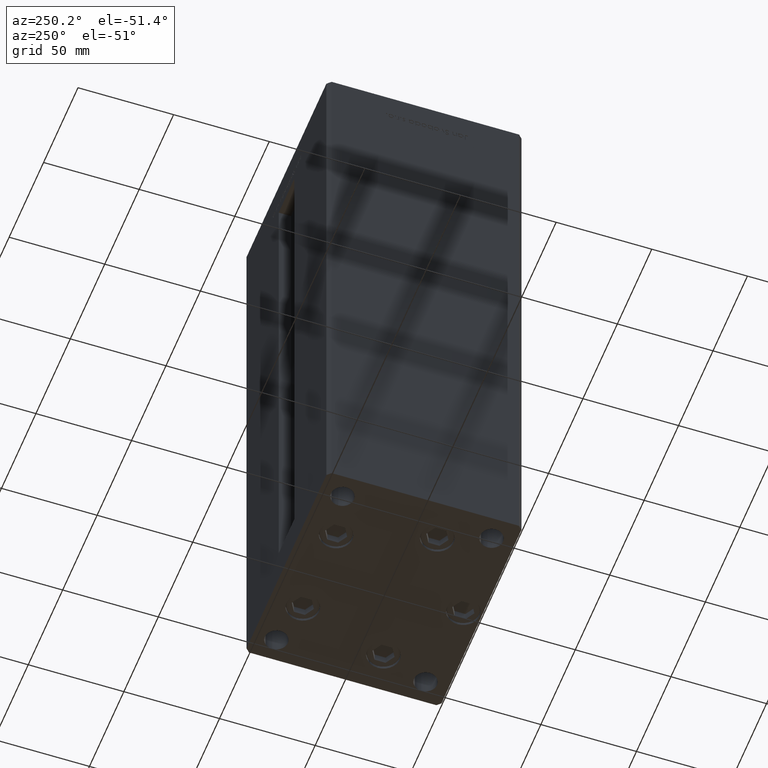
[diagram: clean part render]
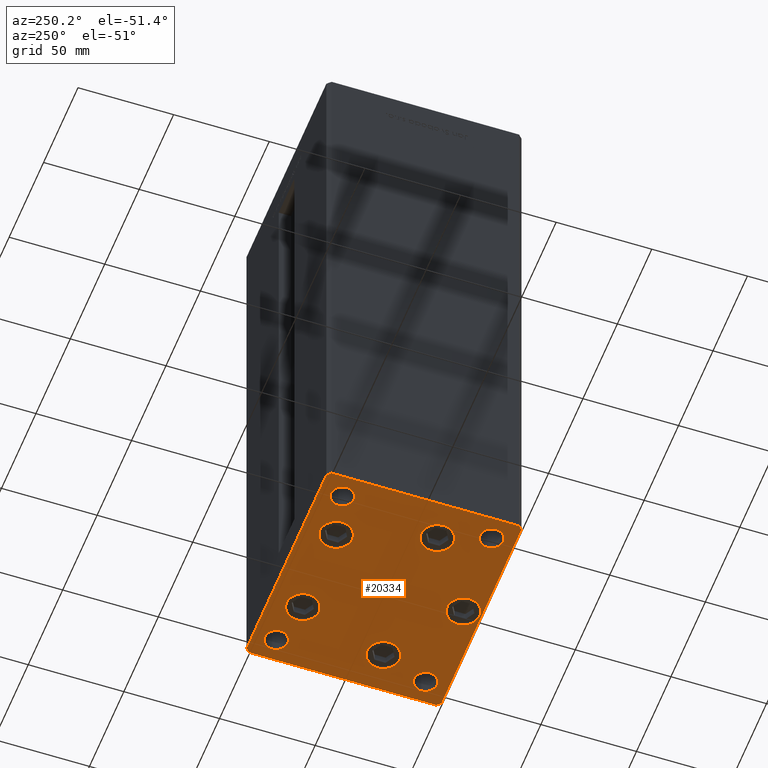
[diagram: same view with one face highlighted and labeled with its STEP entity id]
A machine part, auxiliary view. The second image highlights one B-rep face of the part: STEP entity #20334.
In plain terms, the highlighted planar face has unit normal (0, 0, -1).
Its self-contained STEP definition (entity closure, byte-faithful):
#53 = VERTEX_POINT ( 'NONE', #21001 ) ;
#323 = DIRECTION ( 'NONE',  ( 1.000000000000000000, 0.000000000000000000, 0.000000000000000000 ) ) ;
#451 = CARTESIAN_POINT ( 'NONE',  ( -57.99999999999999289, 50.99999999999997868, 0.000000000000000000 ) ) ;
#476 = EDGE_CURVE ( 'NONE', #53, #16681, #43424, .T. ) ;
#578 = DIRECTION ( 'NONE',  ( 0.000000000000000000, -0.000000000000000000, -1.000000000000000000 ) ) ;
#623 = AXIS2_PLACEMENT_3D ( 'NONE', #34717, #28033, #22859 ) ;
#815 = CARTESIAN_POINT ( 'NONE',  ( -57.99999999999999289, 50.99999999999997868, 0.000000000000000000 ) ) ;
#1194 = VERTEX_POINT ( 'NONE', #28170 ) ;
#1593 = DIRECTION ( 'NONE',  ( 1.000000000000000000, 0.000000000000000000, 0.000000000000000000 ) ) ;
#1868 = DIRECTION ( 'NONE',  ( 1.000000000000000000, 0.000000000000000000, 0.000000000000000000 ) ) ;
#1894 = EDGE_LOOP ( 'NONE', ( #44348, #49921 ) ) ;
#1948 = AXIS2_PLACEMENT_3D ( 'NONE', #48613, #25139, #40692 ) ;
#2445 = ORIENTED_EDGE ( 'NONE', *, *, #5685, .T. ) ;
#2518 = CARTESIAN_POINT ( 'NONE',  ( 39.12657522565562829, -13.83333333333332860, 0.000000000000000000 ) ) ;
#2549 = CIRCLE ( 'NONE', #42090, 8.500000000000000000 ) ;
#2672 = EDGE_LOOP ( 'NONE', ( #8018, #46537, #29343, #2445, #36001, #12735, #51839, #6820 ) ) ;
#2704 = CARTESIAN_POINT ( 'NONE',  ( -57.99999999999997868, -51.00000000000001421, 0.000000000000000000 ) ) ;
#2910 = FACE_OUTER_BOUND ( 'NONE', #2672, .T. ) ;
#3274 = ORIENTED_EDGE ( 'NONE', *, *, #49089, .T. ) ;
#3356 = EDGE_CURVE ( 'NONE', #34405, #30358, #30381, .T. ) ;
#3380 = LINE ( 'NONE', #47395, #25075 ) ;
#3492 = DIRECTION ( 'NONE',  ( -0.000000000000000000, 0.000000000000000000, 1.000000000000000000 ) ) ;
#3738 = CARTESIAN_POINT ( 'NONE',  ( 8.500000000000005329, -41.50000000000000000, 0.000000000000000000 ) ) ;
#4172 = VECTOR ( 'NONE', #17050, 1000.000000000000114 ) ;
#4177 = DIRECTION ( 'NONE',  ( 0.000000000000000000, -0.000000000000000000, -1.000000000000000000 ) ) ;
#4315 = CARTESIAN_POINT ( 'NONE',  ( 57.99999999999993605, 51.00000000000000711, 0.000000000000000000 ) ) ;
#5309 = CARTESIAN_POINT ( 'NONE',  ( 39.12657522565562829, -13.83333333333332860, 0.000000000000000000 ) ) ;
#5648 = CARTESIAN_POINT ( 'NONE',  ( -8.499999999999994671, -41.50000000000000000, 0.000000000000000000 ) ) ;
#5685 = EDGE_CURVE ( 'NONE', #42245, #8961, #3380, .T. ) ;
#5896 = DIRECTION ( 'NONE',  ( 1.000000000000000000, 0.000000000000000000, 0.000000000000000000 ) ) ;
#5946 = VERTEX_POINT ( 'NONE', #31936 ) ;
#5972 = DIRECTION ( 'NONE',  ( 0.000000000000000000, -0.000000000000000000, -1.000000000000000000 ) ) ;
#6126 = DIRECTION ( 'NONE',  ( -0.000000000000000000, 0.000000000000000000, 1.000000000000000000 ) ) ;
#6399 = CARTESIAN_POINT ( 'NONE',  ( -30.62657522565562829, -13.83333333333333748, 0.000000000000000000 ) ) ;
#6412 = VECTOR ( 'NONE', #40059, 1000.000000000000000 ) ;
#6518 = CARTESIAN_POINT ( 'NONE',  ( -54.00000000000000711, 39.00000000000000000, 0.000000000000000000 ) ) ;
#6598 = DIRECTION ( 'NONE',  ( 0.000000000000000000, -0.000000000000000000, -1.000000000000000000 ) ) ;
#6820 = ORIENTED_EDGE ( 'NONE', *, *, #32591, .T. ) ;
#7024 = CARTESIAN_POINT ( 'NONE',  ( -48.00000000000000000, -39.00000000000000000, 0.000000000000000000 ) ) ;
#7258 = LINE ( 'NONE', #20165, #12627 ) ;
#7380 = FACE_BOUND ( 'NONE', #14166, .T. ) ;
#7537 = CIRCLE ( 'NONE', #37014, 8.500000000000000000 ) ;
#7587 = EDGE_CURVE ( 'NONE', #39856, #51593, #26794, .T. ) ;
#7870 = VERTEX_POINT ( 'NONE', #5648 ) ;
#7914 = CARTESIAN_POINT ( 'NONE',  ( 59.99999999999994316, 49.00000000000000000, 0.000000000000000000 ) ) ;
#8018 = ORIENTED_EDGE ( 'NONE', *, *, #48244, .T. ) ;
#8036 = CARTESIAN_POINT ( 'NONE',  ( -54.00000000000000711, -39.00000000000000000, 0.000000000000000000 ) ) ;
#8256 = LINE ( 'NONE', #4315, #29442 ) ;
#8565 = CIRCLE ( 'NONE', #22901, 8.499999999999992895 ) ;
#8761 = ORIENTED_EDGE ( 'NONE', *, *, #21760, .T. ) ;
#8961 = VERTEX_POINT ( 'NONE', #22449 ) ;
#9733 = EDGE_CURVE ( 'NONE', #38596, #30944, #8256, .T. ) ;
#9859 = CIRCLE ( 'NONE', #623, 8.500000000000000000 ) ;
#9903 = AXIS2_PLACEMENT_3D ( 'NONE', #47506, #3492, #323 ) ;
#10036 = CARTESIAN_POINT ( 'NONE',  ( 24.19288941894911460, 33.71875000000000711, 0.000000000000000000 ) ) ;
#10208 = EDGE_CURVE ( 'NONE', #31415, #5946, #7537, .T. ) ;
#10329 = AXIS2_PLACEMENT_3D ( 'NONE', #2518, #38618, #46029 ) ;
#11328 = FACE_BOUND ( 'NONE', #36864, .T. ) ;
#11583 = FACE_BOUND ( 'NONE', #33686, .T. ) ;
#12136 = CARTESIAN_POINT ( 'NONE',  ( 32.69288941894911460, 33.71875000000000711, 0.000000000000000000 ) ) ;
#12162 = ORIENTED_EDGE ( 'NONE', *, *, #40714, .T. ) ;
#12387 = CIRCLE ( 'NONE', #51100, 6.000000000000005329 ) ;
#12554 = CIRCLE ( 'NONE', #24356, 8.500000000000000000 ) ;
#12627 = VECTOR ( 'NONE', #15690, 1000.000000000000114 ) ;
#12735 = ORIENTED_EDGE ( 'NONE', *, *, #9733, .T. ) ;
#13126 = CARTESIAN_POINT ( 'NONE',  ( -60.00000000000000000, 48.99999999999995737, 0.000000000000000000 ) ) ;
#13186 = CIRCLE ( 'NONE', #50246, 6.000000000000005329 ) ;
#13216 = ORIENTED_EDGE ( 'NONE', *, *, #10208, .T. ) ;
#13292 = CIRCLE ( 'NONE', #9903, 6.000000000000005329 ) ;
#13612 = CARTESIAN_POINT ( 'NONE',  ( -48.00000000000000000, -39.00000000000000000, 0.000000000000000000 ) ) ;
#13967 = AXIS2_PLACEMENT_3D ( 'NONE', #46218, #17752, #5896 ) ;
#13971 = AXIS2_PLACEMENT_3D ( 'NONE', #40529, #4177, #44484 ) ;
#14166 = EDGE_LOOP ( 'NONE', ( #17595, #21703 ) ) ;
#14186 = CARTESIAN_POINT ( 'NONE',  ( 54.00000000000000711, -38.99999999999999289, 0.000000000000000000 ) ) ;
#14573 = AXIS2_PLACEMENT_3D ( 'NONE', #22946, #35574, #51663 ) ;
#14968 = AXIS2_PLACEMENT_3D ( 'NONE', #13612, #5972, #26507 ) ;
#15094 = AXIS2_PLACEMENT_3D ( 'NONE', #49401, #40446, #16740 ) ;
#15119 = CARTESIAN_POINT ( 'NONE',  ( -24.19288941894912170, 33.71875000000000000, 0.000000000000000000 ) ) ;
#15646 = ORIENTED_EDGE ( 'NONE', *, *, #38280, .F. ) ;
#15690 = DIRECTION ( 'NONE',  ( 0.7071067811865474617, -0.7071067811865474617, 0.000000000000000000 ) ) ;
#16186 = CARTESIAN_POINT ( 'NONE',  ( 58.00000000000000000, -51.00000000000000711, 0.000000000000000000 ) ) ;
#16210 = LINE ( 'NONE', #24116, #20216 ) ;
#16327 = EDGE_CURVE ( 'NONE', #32653, #30490, #8565, .T. ) ;
#16681 = VERTEX_POINT ( 'NONE', #37173 ) ;
#16740 = DIRECTION ( 'NONE',  ( 1.000000000000000000, 0.000000000000000000, 0.000000000000000000 ) ) ;
#17050 = DIRECTION ( 'NONE',  ( -0.7071067811865451302, -0.7071067811865500152, 0.000000000000000000 ) ) ;
#17339 = ORIENTED_EDGE ( 'NONE', *, *, #36626, .F. ) ;
#17367 = CIRCLE ( 'NONE', #23261, 6.000000000000005329 ) ;
#17595 = ORIENTED_EDGE ( 'NONE', *, *, #19424, .T. ) ;
#17752 = DIRECTION ( 'NONE',  ( -0.000000000000000000, 0.000000000000000000, 1.000000000000000000 ) ) ;
#17923 = CARTESIAN_POINT ( 'NONE',  ( 48.00000000000000000, -38.99999999999999289, 0.000000000000000000 ) ) ;
#18491 = DIRECTION ( 'NONE',  ( 1.000000000000000000, 0.000000000000000000, 0.000000000000000000 ) ) ;
#18580 = VERTEX_POINT ( 'NONE', #6399 ) ;
#18653 = VERTEX_POINT ( 'NONE', #3738 ) ;
#18982 = FACE_BOUND ( 'NONE', #47701, .T. ) ;
#19401 = ORIENTED_EDGE ( 'NONE', *, *, #33441, .T. ) ;
#19424 = EDGE_CURVE ( 'NONE', #7870, #18653, #22158, .T. ) ;
#19523 = CARTESIAN_POINT ( 'NONE',  ( 30.62657522565563184, -13.83333333333332860, 0.000000000000000000 ) ) ;
#19561 = EDGE_CURVE ( 'NONE', #30490, #32653, #28005, .T. ) ;
#19620 = VERTEX_POINT ( 'NONE', #27278 ) ;
#20020 = CIRCLE ( 'NONE', #36892, 8.500000000000000000 ) ;
#20072 = DIRECTION ( 'NONE',  ( 1.000000000000000000, 0.000000000000000000, 0.000000000000000000 ) ) ;
#20165 = CARTESIAN_POINT ( 'NONE',  ( -60.00000000000000000, -49.00000000000000000, 0.000000000000000000 ) ) ;
#20216 = VECTOR ( 'NONE', #43888, 1000.000000000000114 ) ;
#20231 = CARTESIAN_POINT ( 'NONE',  ( -41.99999999999999289, -39.00000000000000000, 0.000000000000000000 ) ) ;
#20334 = ADVANCED_FACE ( 'NONE', ( #26896, #51401, #11328, #7380, #27411, #27670, #11583, #23463, #2910, #18982 ), #31107, .T. ) ;
#21001 = CARTESIAN_POINT ( 'NONE',  ( 54.00000000000000711, 38.99999999999999289, 0.000000000000000000 ) ) ;
#21703 = ORIENTED_EDGE ( 'NONE', *, *, #42339, .T. ) ;
#21760 = EDGE_CURVE ( 'NONE', #27692, #19620, #32296, .T. ) ;
#22158 = CIRCLE ( 'NONE', #1948, 8.500000000000000000 ) ;
#22231 = DIRECTION ( 'NONE',  ( 1.000000000000000000, 1.196361017915039486E-16, 0.000000000000000000 ) ) ;
#22449 = CARTESIAN_POINT ( 'NONE',  ( 59.99999999999994316, 49.00000000000000000, 0.000000000000000000 ) ) ;
#22574 = ORIENTED_EDGE ( 'NONE', *, *, #7587, .T. ) ;
#22859 = DIRECTION ( 'NONE',  ( 1.000000000000000000, 0.000000000000000000, 0.000000000000000000 ) ) ;
#22901 = AXIS2_PLACEMENT_3D ( 'NONE', #5309, #37452, #1868 ) ;
#22946 = CARTESIAN_POINT ( 'NONE',  ( 0.000000000000000000, 0.000000000000000000, 0.000000000000000000 ) ) ;
#22967 = CARTESIAN_POINT ( 'NONE',  ( -48.00000000000000000, 39.00000000000000000, 0.000000000000000000 ) ) ;
#23099 = DIRECTION ( 'NONE',  ( 0.000000000000000000, -0.000000000000000000, -1.000000000000000000 ) ) ;
#23261 = AXIS2_PLACEMENT_3D ( 'NONE', #22967, #6126, #18491 ) ;
#23463 = FACE_BOUND ( 'NONE', #28395, .T. ) ;
#23997 = CARTESIAN_POINT ( 'NONE',  ( 41.99999999999999289, -38.99999999999999289, 0.000000000000000000 ) ) ;
#24116 = CARTESIAN_POINT ( 'NONE',  ( 58.00000000000000000, -51.00000000000000711, 0.000000000000000000 ) ) ;
#24356 = AXIS2_PLACEMENT_3D ( 'NONE', #10036, #6598, #38736 ) ;
#24823 = CARTESIAN_POINT ( 'NONE',  ( -39.12657522565562829, -13.83333333333333925, 0.000000000000000000 ) ) ;
#25075 = VECTOR ( 'NONE', #31835, 1000.000000000000000 ) ;
#25139 = DIRECTION ( 'NONE',  ( 0.000000000000000000, -0.000000000000000000, -1.000000000000000000 ) ) ;
#25211 = LINE ( 'NONE', #451, #4172 ) ;
#25313 = DIRECTION ( 'NONE',  ( 1.000000000000000000, 0.000000000000000000, 0.000000000000000000 ) ) ;
#25573 = AXIS2_PLACEMENT_3D ( 'NONE', #40261, #33147, #36308 ) ;
#25651 = LINE ( 'NONE', #41977, #39990 ) ;
#26346 = CARTESIAN_POINT ( 'NONE',  ( -41.99999999999999289, 39.00000000000000000, 0.000000000000000000 ) ) ;
#26507 = DIRECTION ( 'NONE',  ( 1.000000000000000000, 0.000000000000000000, 0.000000000000000000 ) ) ;
#26794 = CIRCLE ( 'NONE', #14968, 6.000000000000005329 ) ;
#26896 = FACE_BOUND ( 'NONE', #40287, .T. ) ;
#26909 = CIRCLE ( 'NONE', #15094, 8.500000000000000000 ) ;
#27278 = CARTESIAN_POINT ( 'NONE',  ( 15.69288941894910927, 33.71875000000000711, 0.000000000000000000 ) ) ;
#27411 = FACE_BOUND ( 'NONE', #1894, .T. ) ;
#27670 = FACE_BOUND ( 'NONE', #43262, .T. ) ;
#27684 = CARTESIAN_POINT ( 'NONE',  ( -57.99999999999997868, -51.00000000000001421, 0.000000000000000000 ) ) ;
#27692 = VERTEX_POINT ( 'NONE', #12136 ) ;
#28005 = CIRCLE ( 'NONE', #10329, 8.499999999999992895 ) ;
#28033 = DIRECTION ( 'NONE',  ( 0.000000000000000000, -0.000000000000000000, -1.000000000000000000 ) ) ;
#28063 = ORIENTED_EDGE ( 'NONE', *, *, #16327, .T. ) ;
#28170 = CARTESIAN_POINT ( 'NONE',  ( -60.00000000000000000, -49.00000000000000000, 0.000000000000000000 ) ) ;
#28395 = EDGE_LOOP ( 'NONE', ( #15646, #28859 ) ) ;
#28859 = ORIENTED_EDGE ( 'NONE', *, *, #34315, .F. ) ;
#29056 = ORIENTED_EDGE ( 'NONE', *, *, #45873, .T. ) ;
#29343 = ORIENTED_EDGE ( 'NONE', *, *, #48292, .T. ) ;
#29442 = VECTOR ( 'NONE', #40403, 1000.000000000000000 ) ;
#30358 = VERTEX_POINT ( 'NONE', #16186 ) ;
#30381 = LINE ( 'NONE', #2704, #37596 ) ;
#30490 = VERTEX_POINT ( 'NONE', #19523 ) ;
#30938 = DIRECTION ( 'NONE',  ( 1.000000000000000000, 0.000000000000000000, 0.000000000000000000 ) ) ;
#30944 = VERTEX_POINT ( 'NONE', #815 ) ;
#31107 = PLANE ( 'NONE',  #14573 ) ;
#31270 = VERTEX_POINT ( 'NONE', #13126 ) ;
#31415 = VERTEX_POINT ( 'NONE', #39164 ) ;
#31835 = DIRECTION ( 'NONE',  ( -7.080503983578803823E-16, 1.000000000000000000, 0.000000000000000000 ) ) ;
#31936 = CARTESIAN_POINT ( 'NONE',  ( -32.69288941894912170, 33.71875000000000000, 0.000000000000000000 ) ) ;
#32296 = CIRCLE ( 'NONE', #25573, 8.500000000000000000 ) ;
#32591 = EDGE_CURVE ( 'NONE', #31270, #1194, #25651, .T. ) ;
#32653 = VERTEX_POINT ( 'NONE', #37258 ) ;
#33147 = DIRECTION ( 'NONE',  ( 0.000000000000000000, -0.000000000000000000, -1.000000000000000000 ) ) ;
#33293 = DIRECTION ( 'NONE',  ( 0.000000000000000000, -1.000000000000000000, 0.000000000000000000 ) ) ;
#33441 = EDGE_CURVE ( 'NONE', #46151, #41188, #43425, .T. ) ;
#33686 = EDGE_LOOP ( 'NONE', ( #19401, #46991 ) ) ;
#34315 = EDGE_CURVE ( 'NONE', #42366, #37096, #17367, .T. ) ;
#34405 = VERTEX_POINT ( 'NONE', #27684 ) ;
#34415 = EDGE_CURVE ( 'NONE', #8961, #38596, #48252, .T. ) ;
#34717 = CARTESIAN_POINT ( 'NONE',  ( 5.082284216461515748E-15, -41.50000000000000000, 0.000000000000000000 ) ) ;
#34865 = ORIENTED_EDGE ( 'NONE', *, *, #476, .F. ) ;
#35468 = DIRECTION ( 'NONE',  ( 1.000000000000000000, 0.000000000000000000, 0.000000000000000000 ) ) ;
#35574 = DIRECTION ( 'NONE',  ( -0.000000000000000000, 0.000000000000000000, 1.000000000000000000 ) ) ;
#36001 = ORIENTED_EDGE ( 'NONE', *, *, #34415, .T. ) ;
#36202 = AXIS2_PLACEMENT_3D ( 'NONE', #7024, #23099, #35468 ) ;
#36308 = DIRECTION ( 'NONE',  ( 1.000000000000000000, 0.000000000000000000, 0.000000000000000000 ) ) ;
#36626 = EDGE_CURVE ( 'NONE', #16681, #53, #13186, .T. ) ;
#36864 = EDGE_LOOP ( 'NONE', ( #43796, #28063 ) ) ;
#36892 = AXIS2_PLACEMENT_3D ( 'NONE', #15119, #39357, #30938 ) ;
#37011 = EDGE_CURVE ( 'NONE', #41188, #46151, #12387, .T. ) ;
#37014 = AXIS2_PLACEMENT_3D ( 'NONE', #42935, #37951, #1593 ) ;
#37096 = VERTEX_POINT ( 'NONE', #26346 ) ;
#37173 = CARTESIAN_POINT ( 'NONE',  ( 41.99999999999999289, 38.99999999999999289, 0.000000000000000000 ) ) ;
#37258 = CARTESIAN_POINT ( 'NONE',  ( 47.62657522565562118, -13.83333333333332682, 0.000000000000000000 ) ) ;
#37452 = DIRECTION ( 'NONE',  ( 0.000000000000000000, -0.000000000000000000, -1.000000000000000000 ) ) ;
#37596 = VECTOR ( 'NONE', #22231, 1000.000000000000000 ) ;
#37951 = DIRECTION ( 'NONE',  ( 0.000000000000000000, -0.000000000000000000, -1.000000000000000000 ) ) ;
#38280 = EDGE_CURVE ( 'NONE', #37096, #42366, #13292, .T. ) ;
#38596 = VERTEX_POINT ( 'NONE', #40033 ) ;
#38618 = DIRECTION ( 'NONE',  ( 0.000000000000000000, -0.000000000000000000, -1.000000000000000000 ) ) ;
#38736 = DIRECTION ( 'NONE',  ( 1.000000000000000000, 0.000000000000000000, 0.000000000000000000 ) ) ;
#38804 = VERTEX_POINT ( 'NONE', #46358 ) ;
#39164 = CARTESIAN_POINT ( 'NONE',  ( -15.69288941894911993, 33.71875000000000000, 0.000000000000000000 ) ) ;
#39357 = DIRECTION ( 'NONE',  ( 0.000000000000000000, -0.000000000000000000, -1.000000000000000000 ) ) ;
#39856 = VERTEX_POINT ( 'NONE', #8036 ) ;
#39990 = VECTOR ( 'NONE', #33293, 1000.000000000000000 ) ;
#40033 = CARTESIAN_POINT ( 'NONE',  ( 57.99999999999993605, 51.00000000000000711, 0.000000000000000000 ) ) ;
#40059 = DIRECTION ( 'NONE',  ( -0.7071067811865487940, 0.7071067811865463515, 0.000000000000000000 ) ) ;
#40261 = CARTESIAN_POINT ( 'NONE',  ( 24.19288941894911460, 33.71875000000000711, 0.000000000000000000 ) ) ;
#40287 = EDGE_LOOP ( 'NONE', ( #12162, #13216 ) ) ;
#40403 = DIRECTION ( 'NONE',  ( -1.000000000000000000, -2.392722035830079958E-16, 0.000000000000000000 ) ) ;
#40416 = CIRCLE ( 'NONE', #36202, 6.000000000000005329 ) ;
#40446 = DIRECTION ( 'NONE',  ( 0.000000000000000000, -0.000000000000000000, -1.000000000000000000 ) ) ;
#40529 = CARTESIAN_POINT ( 'NONE',  ( 48.00000000000000000, -38.99999999999999289, 0.000000000000000000 ) ) ;
#40692 = DIRECTION ( 'NONE',  ( 1.000000000000000000, 0.000000000000000000, 0.000000000000000000 ) ) ;
#40714 = EDGE_CURVE ( 'NONE', #5946, #31415, #20020, .T. ) ;
#41188 = VERTEX_POINT ( 'NONE', #23997 ) ;
#41194 = EDGE_LOOP ( 'NONE', ( #29056, #8761 ) ) ;
#41977 = CARTESIAN_POINT ( 'NONE',  ( -60.00000000000000000, 48.99999999999995737, 0.000000000000000000 ) ) ;
#42090 = AXIS2_PLACEMENT_3D ( 'NONE', #24823, #578, #20072 ) ;
#42245 = VERTEX_POINT ( 'NONE', #49002 ) ;
#42339 = EDGE_CURVE ( 'NONE', #18653, #7870, #9859, .T. ) ;
#42366 = VERTEX_POINT ( 'NONE', #6518 ) ;
#42935 = CARTESIAN_POINT ( 'NONE',  ( -24.19288941894912170, 33.71875000000000000, 0.000000000000000000 ) ) ;
#43075 = EDGE_CURVE ( 'NONE', #18580, #38804, #2549, .T. ) ;
#43262 = EDGE_LOOP ( 'NONE', ( #34865, #17339 ) ) ;
#43324 = DIRECTION ( 'NONE',  ( -0.000000000000000000, 0.000000000000000000, 1.000000000000000000 ) ) ;
#43424 = CIRCLE ( 'NONE', #13967, 6.000000000000005329 ) ;
#43425 = CIRCLE ( 'NONE', #13971, 6.000000000000005329 ) ;
#43796 = ORIENTED_EDGE ( 'NONE', *, *, #19561, .T. ) ;
#43888 = DIRECTION ( 'NONE',  ( 0.7071067811865474617, 0.7071067811865474617, 0.000000000000000000 ) ) ;
#44348 = ORIENTED_EDGE ( 'NONE', *, *, #47502, .T. ) ;
#44484 = DIRECTION ( 'NONE',  ( 1.000000000000000000, 0.000000000000000000, 0.000000000000000000 ) ) ;
#45873 = EDGE_CURVE ( 'NONE', #19620, #27692, #12554, .T. ) ;
#46029 = DIRECTION ( 'NONE',  ( 1.000000000000000000, 0.000000000000000000, 0.000000000000000000 ) ) ;
#46151 = VERTEX_POINT ( 'NONE', #14186 ) ;
#46218 = CARTESIAN_POINT ( 'NONE',  ( 48.00000000000000000, 38.99999999999999289, 0.000000000000000000 ) ) ;
#46358 = CARTESIAN_POINT ( 'NONE',  ( -47.62657522565562829, -13.83333333333333925, 0.000000000000000000 ) ) ;
#46397 = EDGE_CURVE ( 'NONE', #30944, #31270, #25211, .T. ) ;
#46537 = ORIENTED_EDGE ( 'NONE', *, *, #3356, .T. ) ;
#46991 = ORIENTED_EDGE ( 'NONE', *, *, #37011, .T. ) ;
#47279 = CARTESIAN_POINT ( 'NONE',  ( 48.00000000000000000, 38.99999999999999289, 0.000000000000000000 ) ) ;
#47395 = CARTESIAN_POINT ( 'NONE',  ( 60.00000000000001421, -48.99999999999999289, 0.000000000000000000 ) ) ;
#47502 = EDGE_CURVE ( 'NONE', #38804, #18580, #26909, .T. ) ;
#47506 = CARTESIAN_POINT ( 'NONE',  ( -48.00000000000000000, 39.00000000000000000, 0.000000000000000000 ) ) ;
#47701 = EDGE_LOOP ( 'NONE', ( #3274, #22574 ) ) ;
#48244 = EDGE_CURVE ( 'NONE', #1194, #34405, #7258, .T. ) ;
#48252 = LINE ( 'NONE', #7914, #6412 ) ;
#48292 = EDGE_CURVE ( 'NONE', #30358, #42245, #16210, .T. ) ;
#48613 = CARTESIAN_POINT ( 'NONE',  ( 5.082284216461515748E-15, -41.50000000000000000, 0.000000000000000000 ) ) ;
#49002 = CARTESIAN_POINT ( 'NONE',  ( 60.00000000000001421, -48.99999999999999289, 0.000000000000000000 ) ) ;
#49089 = EDGE_CURVE ( 'NONE', #51593, #39856, #40416, .T. ) ;
#49401 = CARTESIAN_POINT ( 'NONE',  ( -39.12657522565562829, -13.83333333333333925, 0.000000000000000000 ) ) ;
#49921 = ORIENTED_EDGE ( 'NONE', *, *, #43075, .T. ) ;
#50079 = DIRECTION ( 'NONE',  ( 0.000000000000000000, -0.000000000000000000, -1.000000000000000000 ) ) ;
#50246 = AXIS2_PLACEMENT_3D ( 'NONE', #47279, #43324, #51495 ) ;
#51100 = AXIS2_PLACEMENT_3D ( 'NONE', #17923, #50079, #25313 ) ;
#51401 = FACE_BOUND ( 'NONE', #41194, .T. ) ;
#51495 = DIRECTION ( 'NONE',  ( 1.000000000000000000, 0.000000000000000000, 0.000000000000000000 ) ) ;
#51593 = VERTEX_POINT ( 'NONE', #20231 ) ;
#51663 = DIRECTION ( 'NONE',  ( 1.000000000000000000, 0.000000000000000000, 0.000000000000000000 ) ) ;
#51839 = ORIENTED_EDGE ( 'NONE', *, *, #46397, .T. ) ;